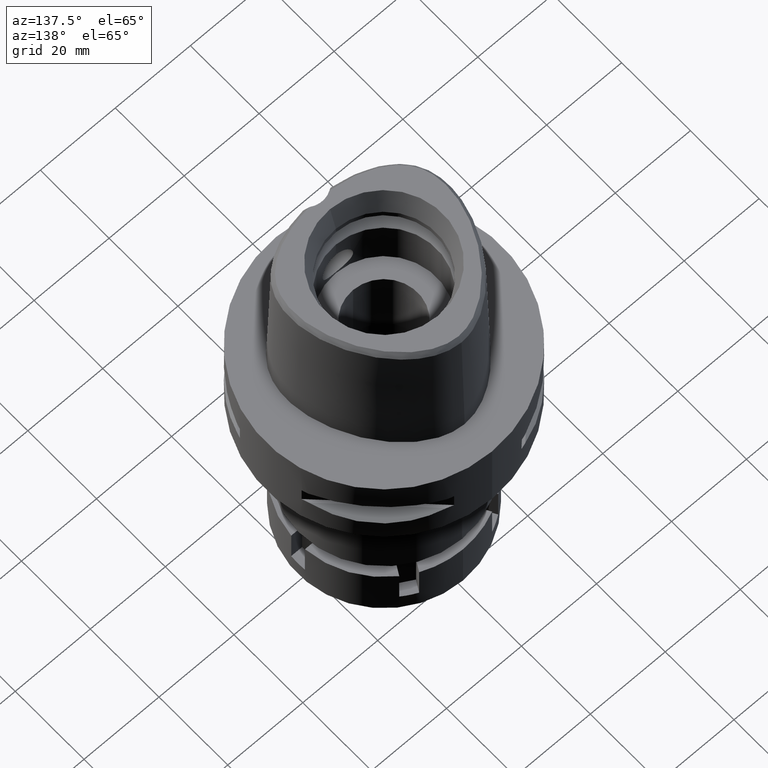
[diagram: clean part render]
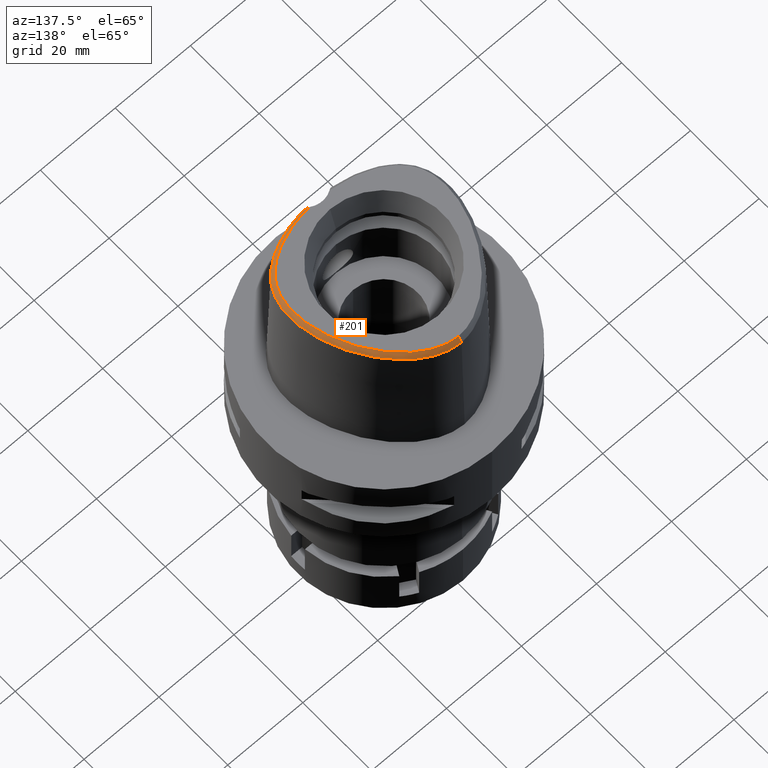
[diagram: same view with one face highlighted and labeled with its STEP entity id]
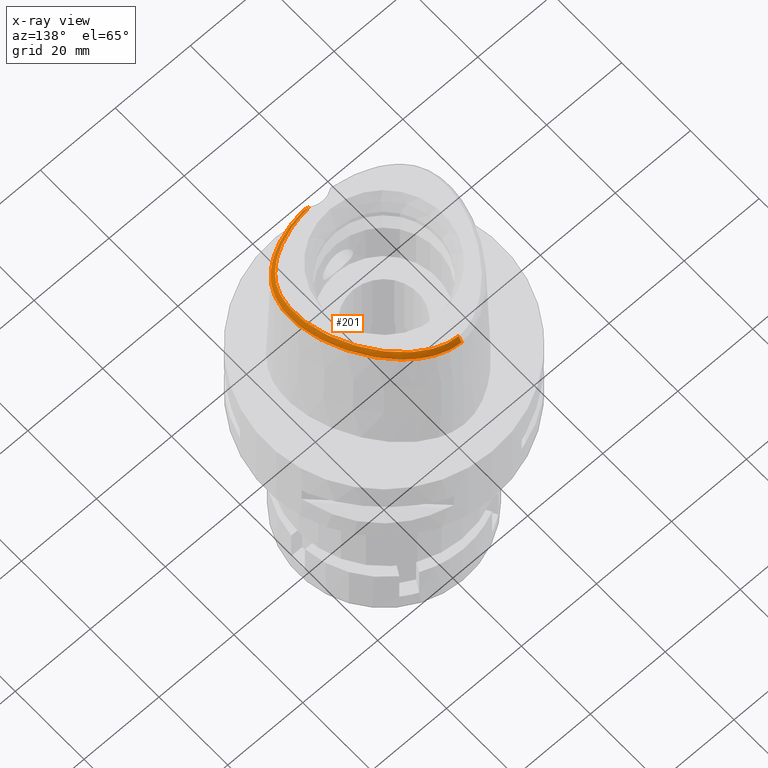
[diagram: x-ray of the same camera — body ghosted, the highlighted face saturated]
A machine part, auxiliary view. The second image highlights one B-rep face of the part: STEP entity #201.
The next image is the same camera in x-ray: the body ghosted, the highlighted face saturated — about 0% of this face is hidden behind the body in this view.
In plain terms, the highlighted face is a freeform B-spline surface patch.
Its self-contained STEP definition (entity closure, byte-faithful):
#1 = CARTESIAN_POINT ( 'NONE',  ( 14.53414054194000116, -15.86398340486000080, 36.96684091757000346 ) ) ;
#2 = CARTESIAN_POINT ( 'NONE',  ( 16.81132511292999965, 8.478678339543998632, 38.14312042908000677 ) ) ;
#25 = CARTESIAN_POINT ( 'NONE',  ( 19.22975104545000136, -10.58985094438999930, 37.55498045334000068 ) ) ;
#26 = CARTESIAN_POINT ( 'NONE',  ( 21.23217479828999998, -6.295849532791999437, 36.37870113081999790 ) ) ;
#55 = CARTESIAN_POINT ( 'NONE',  ( 18.16855469346000262, -13.32167118051000010, 36.37870073034000029 ) ) ;
#57 = CARTESIAN_POINT ( 'NONE',  ( 7.247723090906999843, 20.48100131961000159, 36.37870067739000035 ) ) ;
#62 = CARTESIAN_POINT ( 'NONE',  ( 2.066862868996000024, -18.73904617147000096, 38.14312038439999952 ) ) ;
#82 = CARTESIAN_POINT ( 'NONE',  ( 19.52745459987999865, -9.975070809521000115, 37.55498058475999557 ) ) ;
#83 = CARTESIAN_POINT ( 'NONE',  ( 12.89692419718000060, 15.29919441654999979, 36.96684115491000000 ) ) ;
#87 = CARTESIAN_POINT ( 'NONE',  ( 2.663801036869999805, -19.04755285614000115, 37.55498080539000227 ) ) ;
#108 = CARTESIAN_POINT ( 'NONE',  ( 2.002647189383000015, 21.41927919608000153, 38.14312046408999635 ) ) ;
#111 = CARTESIAN_POINT ( 'NONE',  ( 7.669267885208999935, -18.26423115759000382, 37.55498134495000073 ) ) ;
#135 = CARTESIAN_POINT ( 'NONE',  ( 4.349502290544999816, 21.11240394892999817, 37.55498052557000221 ) ) ;
#166 = CARTESIAN_POINT ( 'NONE',  ( 4.225481229390999793, 20.78699406918000037, 38.14312046525999733 ) ) ;
#201 = ADVANCED_FACE ( 'NONE', ( #3846 ), #1224, .F. ) ;
#217 = CARTESIAN_POINT ( 'NONE',  ( -0.5994318066995000249, 21.58623674582000262, 38.14312050749000349 ) ) ;
#246 = CARTESIAN_POINT ( 'NONE',  ( 14.21382211799703654, -15.34284287400226354, 37.99999999999819522 ) ) ;
#251 = CARTESIAN_POINT ( 'NONE',  ( 1.401147701963000092, 22.21784626514000038, 36.96684023193000002 ) ) ;
#269 = CARTESIAN_POINT ( 'NONE',  ( 19.78323211892966071, -8.541156231035872182, 37.99999999999726441 ) ) ;
#275 = CARTESIAN_POINT ( 'NONE',  ( 0.6897372437469000417, 22.28430074269999750, 36.96684044975999939 ) ) ;
#292 = CARTESIAN_POINT ( 'NONE',  ( 17.91165267838871245, -12.13575389398076965, 38.00000000000230216 ) ) ;
#293 = CARTESIAN_POINT ( 'NONE',  ( 21.32871516740507545, -4.105831245034452515, 36.52186680739941949 ) ) ;
#322 = CARTESIAN_POINT ( 'NONE',  ( 13.33890749495820849, -15.84912955620109187, 37.99999999999753442 ) ) ;
#335 = CARTESIAN_POINT ( 'NONE',  ( 19.56181150269000213, 1.500968667528000067, 38.14312008968000356 ) ) ;
#349 = CARTESIAN_POINT ( 'NONE',  ( 15.24661770199427657, 11.25762885478387254, 37.99999999999772626 ) ) ;
#358 = CARTESIAN_POINT ( 'NONE',  ( 21.34185696465999982, -3.233027288200000182, 36.37870063906999718 ) ) ;
#381 = CARTESIAN_POINT ( 'NONE',  ( 10.49683100008000025, -18.14945449713000158, 36.37870323033000375 ) ) ;
#382 = CARTESIAN_POINT ( 'NONE',  ( 19.37066120961999971, 4.467060877621999992, 36.96684021386000296 ) ) ;
#404 = CARTESIAN_POINT ( 'NONE',  ( 2.682287482605000051, -18.78036330228999873, 38.00000000000000000 ) ) ;
#418 = CARTESIAN_POINT ( 'NONE',  ( 20.44912681962999912, -9.562571519987999480, 36.37870112681000023 ) ) ;
#419 = CARTESIAN_POINT ( 'NONE',  ( 18.15585265601999865, 7.363055116946999767, 36.96684125519000474 ) ) ;
#433 = CARTESIAN_POINT ( 'NONE',  ( 3.013176611081999745, -19.00300066984999958, 37.57866301439000267 ) ) ;
#444 = CARTESIAN_POINT ( 'NONE',  ( 18.90260115292000265, -11.17030126791000022, 37.55498058751000201 ) ) ;
#445 = CARTESIAN_POINT ( 'NONE',  ( 20.03518568603999839, -8.618343707595998993, 37.55498052587000046 ) ) ;
#449 = CARTESIAN_POINT ( 'NONE',  ( 3.557059305159000040, -18.96940428717000060, 37.55498077425999526 ) ) ;
#468 = CARTESIAN_POINT ( 'NONE',  ( 15.15655908591999967, -15.04029885751999984, 37.55498079604999617 ) ) ;
#469 = CARTESIAN_POINT ( 'NONE',  ( 2.716266201037999650, 21.26309178397000110, 38.14312041160999911 ) ) ;
#473 = CARTESIAN_POINT ( 'NONE',  ( 2.270433486118999866, -18.72649904582999980, 38.14312037977000358 ) ) ;
#503 = CARTESIAN_POINT ( 'NONE',  ( 18.53525297414000050, -11.73631935933000037, 37.55498045348999625 ) ) ;
#505 = CARTESIAN_POINT ( 'NONE',  ( 3.561505512177999933, 21.38601115587999857, 37.55498065686000331 ) ) ;
#510 = CARTESIAN_POINT ( 'NONE',  ( 6.246371199437999344, -18.57542718642999802, 37.55498048815000089 ) ) ;
#532 = CARTESIAN_POINT ( 'NONE',  ( 12.63752979875000015, 15.06692760778999940, 37.55498077066999230 ) ) ;
#557 = CARTESIAN_POINT ( 'NONE',  ( 14.14950818264999910, 14.36765878763999993, 36.37870016552999886 ) ) ;
#583 = CARTESIAN_POINT ( 'NONE',  ( 8.736038160413999165, 18.65754381321000110, 37.55498038934999983 ) ) ;
#636 = CARTESIAN_POINT ( 'NONE',  ( 2.195869635844999834, 22.44604550562000256, 36.37870065946999887 ) ) ;
#658 = CARTESIAN_POINT ( 'NONE',  ( 18.67722910597819208, -11.03372143227935531, 37.99999999999970868 ) ) ;
#691 = CARTESIAN_POINT ( 'NONE',  ( 20.27923816685482450, -6.179850483268138461, 38.00000000000210321 ) ) ;
#716 = CARTESIAN_POINT ( 'NONE',  ( 12.44125753246211907, 14.89118158853626106, 37.99999999999642597 ) ) ;
#717 = CARTESIAN_POINT ( 'NONE',  ( 18.90964962507554148, -12.28759713487851357, 36.52186680739941949 ) ) ;
#738 = CARTESIAN_POINT ( 'NONE',  ( 6.760281394351524753, 19.65404668909712171, 37.99999999999683098 ) ) ;
#768 = CARTESIAN_POINT ( 'NONE',  ( 3.529311563348633385, -18.70747079909890331, 37.99999999999987921 ) ) ;
#779 = CARTESIAN_POINT ( 'NONE',  ( 20.29827156127000265, -3.280096505893999925, 38.14312046589000005 ) ) ;
#786 = B_SPLINE_CURVE_WITH_KNOTS ( 'NONE', 3,
 ( #4953, #2037, #4984, #3288, #4497, #3263, #3677, #2855, #4905, #2400, #738, #1626, #5290, #2831, #1542, #4054, #716, #5314, #4077, #349, #2800, #1135, #4520, #4471, #3726, #4930, #3310, #1180, #1519, #5396, #2378, #1211, #3647, #691, #2879, #1157, #269, #2908, #1956, #3234, #658, #2346, #292, #1980, #5344, #4028, #2420, #3207, #246, #322, #4137, #1577, #1933, #4546, #3624, #1097, #2014, #768, #3704, #5371 ),
 .UNSPECIFIED., .F., .F.,
 ( 4, 1, 1, 1, 1, 1, 1, 1, 1, 1, 1, 1, 1, 1, 1, 1, 1, 1, 1, 1, 1, 1, 1, 1, 1, 1, 1, 1, 1, 1, 1, 1, 1, 1, 1, 1, 1, 1, 1, 1, 1, 1, 1, 1, 1, 1, 1, 1, 1, 1, 1, 1, 1, 1, 1, 1, 1, 4 ),
 ( 0.0000000000000000000, 0.01775854187129999318, 0.03551708374169992855, 0.05327562561200005486, 0.07103416748239999023, 0.08879270935270000553, 0.1065512512231000519, 0.1243097930933999562, 0.1420683349638000026, 0.1598268768341000179, 0.1775854187044000332, 0.1953439605747999686, 0.2131025024450999839, 0.2308610443155000302, 0.2486195861857999345, 0.2663781280563000120, 0.2841366699266000273, 0.3018952117970000737, 0.3196537536672999780, 0.3374122955377000244, 0.3551708374080000397, 0.3729293792782999439, 0.3906879211486999903, 0.4084464630190000056, 0.4262050048894000520, 0.4439635467596999563, 0.4617220886301000027, 0.4794806305004000180, 0.4972391723707999533, 0.5149977142410999686, 0.5327562561113999839, 0.5505147979818000303, 0.5682733398521000456, 0.5860318817224999810, 0.6037904235927999963, 0.6215489654632000427, 0.6393075073334999470, 0.6570660492038999934, 0.6748245910742000087, 0.6925831329445000240, 0.7103416748149000703, 0.7281002166851999746, 0.7458587585556000210, 0.7636173004259000363, 0.7813758422962999717, 0.7991343841665999870, 0.8168929260370000334, 0.8346514679073000487, 0.8524100097776999840, 0.8701685516479999993, 0.8879270935183000146, 0.9056856353886799660, 0.9234441772589799813, 0.9412027191293600437, 0.9589612609997000270, 0.9767198028700500023, 0.9944783447403919840, 1.000000000000000000 ),
 .UNSPECIFIED. ) ;
#801 = CARTESIAN_POINT ( 'NONE',  ( 16.76705465379000159, -14.22154602754999964, 36.96684048117000287 ) ) ;
#802 = CARTESIAN_POINT ( 'NONE',  ( 20.42032778385999947, -0.9682648818157000292, 37.55498067365000736 ) ) ;
#827 = CARTESIAN_POINT ( 'NONE',  ( 19.84709587994000302, -10.91245682656999882, 36.37870038303999820 ) ) ;
#829 = CARTESIAN_POINT ( 'NONE',  ( 19.69782293031000009, 4.586211662315999860, 36.37870006239000276 ) ) ;
#833 = CARTESIAN_POINT ( 'NONE',  ( 2.109679075390999969, -19.43382457305000344, 36.96684116970000389 ) ) ;
#862 = CARTESIAN_POINT ( 'NONE',  ( 17.36918122826999777, -13.65829899168999972, 36.96684054597999847 ) ) ;
#863 = CARTESIAN_POINT ( 'NONE',  ( 20.23629840058000440, 1.674219097718000260, 36.96684329719000317 ) ) ;
#868 = CARTESIAN_POINT ( 'NONE',  ( 2.691157682845999766, -19.39454029196000207, 36.96684123551000312 ) ) ;
#877 = VERTEX_POINT ( 'NONE', #4328 ) ;
#886 = CARTESIAN_POINT ( 'NONE',  ( 15.55375942659000010, -15.61239560307999952, 36.37870163160999937 ) ) ;
#887 = CARTESIAN_POINT ( 'NONE',  ( 4.597544412854000839, 21.76322370843999821, 36.37870064616999599 ) ) ;
#910 = CARTESIAN_POINT ( 'NONE',  ( 18.24923933955999900, -11.53760145492000078, 38.14312048844999481 ) ) ;
#911 = CARTESIAN_POINT ( 'NONE',  ( 6.175651576553000233, 20.67513462779000122, 36.96684100518999827 ) ) ;
#940 = CARTESIAN_POINT ( 'NONE',  ( 5.309492800363000420, 21.09219560234999591, 36.96684091790000082 ) ) ;
#966 = CARTESIAN_POINT ( 'NONE',  ( 8.187220205125999684, 19.89351731613000140, 36.37870071398000249 ) ) ;
#969 = CARTESIAN_POINT ( 'NONE',  ( 9.210237023466998352, -18.56807876874999863, 36.37870482197000399 ) ) ;
#981 = B_SPLINE_CURVE_WITH_KNOTS ( 'NONE', 3,
 ( #2668, #2927, #5129, #433, #4186, #404 ),
 .UNSPECIFIED., .F., .F.,
 ( 4, 1, 1, 4 ),
 ( 0.0000000000000000000, 0.3333333333333000081, 0.6666666666667000474, 1.000000000000000000 ),
 .UNSPECIFIED. ) ;
#992 = CARTESIAN_POINT ( 'NONE',  ( 10.43275403164999915, 16.80350240081000024, 38.14312011183000095 ) ) ;
#1049 = CARTESIAN_POINT ( 'NONE',  ( 0.7116062460697000214, 22.63188833479999928, 36.37870043257999697 ) ) ;
#1081 = EDGE_CURVE ( 'NONE', #2563, #1262, #786, .T. ) ;
#1097 = CARTESIAN_POINT ( 'NONE',  ( 6.196495988003621669, -18.31673538864915329, 37.99999999999618439 ) ) ;
#1103 = CARTESIAN_POINT ( 'NONE',  ( -0.4340965625268999872, 22.64064373783999784, 36.37870066218000176 ) ) ;
#1135 = CARTESIAN_POINT ( 'NONE',  ( 16.88599964843029255, 8.518708218770241203, 37.99999999999727862 ) ) ;
#1136 = CARTESIAN_POINT ( 'NONE',  ( 0.7901461619530777414, 22.56201467849585640, 36.52186680739941949 ) ) ;
#1139 = CARTESIAN_POINT ( 'NONE',  ( 0.02306072704373000187, 21.95694936752000004, 37.55498062224000222 ) ) ;
#1157 = CARTESIAN_POINT ( 'NONE',  ( 19.98468477322735737, -7.807876343103749228, 37.99999999999729994 ) ) ;
#1180 = CARTESIAN_POINT ( 'NONE',  ( 19.94150023628099433, 0.2261566111945258750, 37.99999999999851497 ) ) ;
#1181 = CARTESIAN_POINT ( 'NONE',  ( 21.07429999882542404, -0.4408303635841513968, 36.52186680739941949 ) ) ;
#1189 = CARTESIAN_POINT ( 'NONE',  ( 20.06787939814000055, -7.007105580488000030, 38.14312047899000646 ) ) ;
#1204 = EDGE_CURVE ( 'NONE', #3575, #1262, #981, .T. ) ;
#1210 = ORIENTED_EDGE ( 'NONE', *, *, #1081, .T. ) ;
#1211 = CARTESIAN_POINT ( 'NONE',  ( 20.40062138794801783, -4.309334958867511389, 38.00000000000190425 ) ) ;
#1223 = CARTESIAN_POINT ( 'NONE',  ( 14.16944937044000064, -15.27065084416999952, 38.14312041931999886 ) ) ;
#1224 = B_SPLINE_SURFACE_WITH_KNOTS ( 'NONE', 3, 3, ( 
 ( #62, #1696, #833, #5102 ),
 ( #473, #4312, #3049, #2218 ),
 ( #2525, #87, #868, #4204 ),
 ( #2604, #449, #2581, #4258 ),
 ( #3817, #4726, #1752, #3024 ),
 ( #4286, #510, #2110, #2135 ),
 ( #3874, #111, #1801, #5160 ),
 ( #4754, #1388, #3084, #969 ),
 ( #2664, #3374, #3431, #381 ),
 ( #5020, #5097, #5433, #1330 ),
 ( #2996, #2070, #3790, #2552 ),
 ( #1271, #1716, #2962, #4638 ),
 ( #1223, #2189, #1, #3812 ),
 ( #1305, #468, #3761, #886 ),
 ( #2576, #4996, #4605, #1690 ),
 ( #2599, #2516, #801, #5045 ),
 ( #1664, #1248, #862, #4228 ),
 ( #3838, #3019, #4694, #55 ),
 ( #4253, #4667, #1747, #2129 ),
 ( #910, #503, #2492, #4278 ),
 ( #3351, #444, #3870, #2155 ),
 ( #2937, #25, #3399, #827 ),
 ( #5072, #82, #1771, #2917 ),
 ( #4583, #4170, #4198, #418 ),
 ( #2105, #445, #1610, #4172 ),
 ( #5381, #3813, #2470, #3352 ),
 ( #1189, #4668, #1691, #1225 ),
 ( #2918, #4606, #4559, #26 ),
 ( #3400, #2964, #3296, #1717 ),
 ( #5073, #5404, #4147, #1272 ),
 ( #779, #1306, #3734, #358 ),
 ( #1635, #3791, #2997, #2891 ),
 ( #2518, #802, #4965, #2438 ),
 ( #2130, #1665, #4119, #4640 ),
 ( #335, #2022, #863, #2047 ),
 ( #5022, #2553, #3327, #4997 ),
 ( #3713, #4584, #382, #829 ),
 ( #2071, #2493, #3764, #5434 ),
 ( #1249, #4200, #419, #3375 ),
 ( #2, #4229, #5046, #2938 ),
 ( #2106, #1332, #3955, #3871 ),
 ( #2190, #2156, #1858, #3517 ),
 ( #4774, #3432, #5183, #2688 ),
 ( #1409, #2239, #3921, #557 ),
 ( #1832, #532, #83, #1798 ),
 ( #1354, #5098, #3104, #2600 ),
 ( #992, #4357, #3020, #1384 ),
 ( #4695, #4280, #3080, #4750 ),
 ( #4309, #583, #2275, #5208 ),
 ( #4718, #3481, #3897, #966 ),
 ( #2636, #2660, #3538, #57 ),
 ( #5151, #3839, #911, #3127 ),
 ( #5122, #3045, #940, #4332 ),
 ( #166, #135, #1435, #887 ),
 ( #2578, #505, #4254, #1772 ),
 ( #469, #1748, #3457, #2214 ),
 ( #108, #2405, #1523, #636 ),
 ( #4081, #3565, #251, #4883 ),
 ( #5272, #1884, #275, #1049 ),
 ( #3651, #1139, #5234, #5295 ),
 ( #1466, #2753, #3212, #1103 ),
 ( #217, #2808, #1911, #2353 ) ),
 .UNSPECIFIED., .F., .F., .F.,
 ( 4, 1, 1, 1, 1, 1, 1, 1, 1, 1, 1, 1, 1, 1, 1, 1, 1, 1, 1, 1, 1, 1, 1, 1, 1, 1, 1, 1, 1, 1, 1, 1, 1, 1, 1, 1, 1, 1, 1, 1, 1, 1, 1, 1, 1, 1, 1, 1, 1, 1, 1, 1, 1, 1, 1, 1, 1, 1, 1, 4 ),
 ( 4, 4 ),
 ( -0.006872922983041999424, 0.0000000000000000000, 0.005521655259608000341, 0.02328019712995000115, 0.04103873900030000077, 0.05879728087063999797, 0.07655582274102000484, 0.09431436461132000626, 0.1120729064816999992, 0.1298314483520000007, 0.1475899902222999882, 0.1653485320926999791, 0.1831070739629999944, 0.2008656158334000130, 0.2186241577037000006, 0.2363826995740999914, 0.2541412414444000345, 0.2718997833148000254, 0.2896583251850999852, 0.3074168670554999760, 0.3251754089257999913, 0.3429339507961000066, 0.3606924926664999975, 0.3784510345368000128, 0.3962095764072000037, 0.4139681182775000190, 0.4317266601479000099, 0.4494852020181999697, 0.4672437438886000161, 0.4850022857588999758, 0.5027608276292000467, 0.5205193694995999820, 0.5382779113698999973, 0.5560364532403000437, 0.5737949951105999480, 0.5915535369809999944, 0.6093120788513000097, 0.6270706207217000561, 0.6448291625919999603, 0.6625877044622999756, 0.6803462463327000220, 0.6981047882029999263, 0.7158633300733999727, 0.7336218719436999880, 0.7513804138142000655, 0.7691389556844999698, 0.7868974975549000161, 0.8046560394252000314, 0.8224145812955999668, 0.8401731231658999821, 0.8579316650361999974, 0.8756902069066000438, 0.8934487487768999481, 0.9112072906472999945, 0.9289658325176000098, 0.9467243743879999451, 0.9644829162583000715, 0.9822414581287000068, 1.000000000000000000, 1.016088127153999876 ),
 ( -0.07386983292599000328, 1.073894376113999849 ),
 .UNSPECIFIED. ) ;
#1225 = CARTESIAN_POINT ( 'NONE',  ( 21.09595574128999829, -7.192927168011999939, 36.37870049073999468 ) ) ;
#1248 = CARTESIAN_POINT ( 'NONE',  ( 17.12403948807999754, -13.41094001383999945, 37.55498050838999546 ) ) ;
#1249 = CARTESIAN_POINT ( 'NONE',  ( 17.52725423898000301, 7.063427290713000239, 38.14312037255000121 ) ) ;
#1262 = VERTEX_POINT ( 'NONE', #5449 ) ;
#1271 = CARTESIAN_POINT ( 'NONE',  ( 13.29854752836000031, -15.77462181940000185, 38.14312046866000117 ) ) ;
#1272 = CARTESIAN_POINT ( 'NONE',  ( 21.36051100466999841, -4.318184398075000097, 36.37870083787999675 ) ) ;
#1305 = CARTESIAN_POINT ( 'NONE',  ( 14.95795891557999902, -14.75425048474000000, 38.14312037826999813 ) ) ;
#1306 = CARTESIAN_POINT ( 'NONE',  ( 20.64613336240000052, -3.264406766661999804, 37.55498052362000294 ) ) ;
#1330 = CARTESIAN_POINT ( 'NONE',  ( 11.68879713049999935, -17.69331152931000162, 36.37870041250999975 ) ) ;
#1332 = CARTESIAN_POINT ( 'NONE',  ( 16.32370459612999980, 10.04471794312999933, 37.55498053819000148 ) ) ;
#1354 = CARTESIAN_POINT ( 'NONE',  ( 11.40559229511999995, 15.86763123285999910, 38.14312012912999705 ) ) ;
#1384 = CARTESIAN_POINT ( 'NONE',  ( 11.13843799368000020, 17.57367429994000219, 36.37870464998999864 ) ) ;
#1388 = CARTESIAN_POINT ( 'NONE',  ( 9.011940601596000633, -17.90052240268000006, 37.55498167176000379 ) ) ;
#1409 = CARTESIAN_POINT ( 'NONE',  ( 13.33852104619000123, 13.70934353575999864, 38.14312050770000440 ) ) ;
#1435 = CARTESIAN_POINT ( 'NONE',  ( 4.473523351700000816, 21.43781382868999685, 36.96684058587000266 ) ) ;
#1466 = CARTESIAN_POINT ( 'NONE',  ( -0.3946592109888000244, 21.59706614405000025, 38.14312046385000343 ) ) ;
#1519 = CARTESIAN_POINT ( 'NONE',  ( 20.15982952132431905, -1.007721426051791491, 38.00000000000221689 ) ) ;
#1523 = CARTESIAN_POINT ( 'NONE',  ( 2.131462153691000339, 22.10379006910000044, 36.96684059433999892 ) ) ;
#1542 = CARTESIAN_POINT ( 'NONE',  ( 10.48999540691041510, 16.86597469870065069, 37.99999999999777600 ) ) ;
#1577 = CARTESIAN_POINT ( 'NONE',  ( 11.32341394162737380, -16.80569392800370920, 37.99999999999388933 ) ) ;
#1578 = CARTESIAN_POINT ( 'NONE',  ( 2.376843874103966581, 22.39422497744399720, 36.52186680739941949 ) ) ;
#1610 = CARTESIAN_POINT ( 'NONE',  ( 20.36816876717999847, -8.720355058599999154, 36.96684058657999827 ) ) ;
#1626 = CARTESIAN_POINT ( 'NONE',  ( 7.655962789343796260, 19.09402979099453646, 38.00000000000377298 ) ) ;
#1635 = CARTESIAN_POINT ( 'NONE',  ( 20.22045711620999953, -2.183654373984999619, 38.14312050157000300 ) ) ;
#1664 = CARTESIAN_POINT ( 'NONE',  ( 16.87889774789000086, -13.16358103600000007, 38.14312047079000223 ) ) ;
#1665 = CARTESIAN_POINT ( 'NONE',  ( 20.19964279111999872, 0.2788451704323999802, 37.55498148892000643 ) ) ;
#1690 = CARTESIAN_POINT ( 'NONE',  ( 16.31223298043000014, -15.05229700301999785, 36.37870081037999626 ) ) ;
#1691 = CARTESIAN_POINT ( 'NONE',  ( 20.75326362691000170, -7.130986638836999347, 36.96684048682000423 ) ) ;
#1696 = CARTESIAN_POINT ( 'NONE',  ( 2.088270972193000397, -19.08643537226000220, 37.55498077704999815 ) ) ;
#1716 = CARTESIAN_POINT ( 'NONE',  ( 13.46440297242000028, -16.08080427727999862, 37.55498051501999868 ) ) ;
#1717 = CARTESIAN_POINT ( 'NONE',  ( 21.32206815853000137, -5.338365932389999458, 36.37870166044999820 ) ) ;
#1747 = CARTESIAN_POINT ( 'NONE',  ( 18.39160130233999979, -12.51513463366000067, 36.96684098768999860 ) ) ;
#1748 = CARTESIAN_POINT ( 'NONE',  ( 2.801193174805000297, 21.60083397745000156, 37.55498069241000536 ) ) ;
#1752 = CARTESIAN_POINT ( 'NONE',  ( 4.802293543043999691, -19.17143546928999953, 36.96684061724999992 ) ) ;
#1771 = CARTESIAN_POINT ( 'NONE',  ( 19.84553733167000189, -10.11689708951999833, 36.96684072329000514 ) ) ;
#1772 = CARTESIAN_POINT ( 'NONE',  ( 3.771158136176000042, 22.05020744727999826, 36.37870112448000270 ) ) ;
#1798 = CARTESIAN_POINT ( 'NONE',  ( 13.15631859561000105, 15.53146122531000195, 36.37870153913999616 ) ) ;
#1801 = CARTESIAN_POINT ( 'NONE',  ( 7.751773653458000624, -18.60250291400999956, 36.96684248814000284 ) ) ;
#1832 = CARTESIAN_POINT ( 'NONE',  ( 12.37813540031999970, 14.83466079901999990, 38.14312038644000324 ) ) ;
#1858 = CARTESIAN_POINT ( 'NONE',  ( 15.75599792698000101, 11.59618721631999883, 36.96684123699000679 ) ) ;
#1884 = CARTESIAN_POINT ( 'NONE',  ( 0.6678682414240999510, 21.93671315059000193, 37.55498046694000180 ) ) ;
#1911 = CARTESIAN_POINT ( 'NONE',  ( -0.6386410310993000383, 22.28118752305000072, 36.96684028104999697 ) ) ;
#1933 = CARTESIAN_POINT ( 'NONE',  ( 10.17751632998551159, -17.24426134458732562, 37.99999999999792522 ) ) ;
#1956 = CARTESIAN_POINT ( 'NONE',  ( 19.28677546797380415, -9.867757137506220744, 37.99999999999656097 ) ) ;
#1980 = CARTESIAN_POINT ( 'NONE',  ( 17.45306278053644178, -12.68156296993868182, 37.99999999999922551 ) ) ;
#1981 = CARTESIAN_POINT ( 'NONE',  ( 4.467522181836776518, -19.48130276147466233, 36.52186680739941949 ) ) ;
#2014 = CARTESIAN_POINT ( 'NONE',  ( 4.715576077242019437, -18.56597918135031478, 37.99999999999606359 ) ) ;
#2022 = CARTESIAN_POINT ( 'NONE',  ( 19.89905495164000371, 1.587593882622999830, 37.55498169343000114 ) ) ;
#2037 = CARTESIAN_POINT ( 'NONE',  ( 0.2185816947241100150, 21.68728795389527164, 38.00000000000044764 ) ) ;
#2047 = CARTESIAN_POINT ( 'NONE',  ( 20.57354184952999887, 1.760844312813000023, 36.37870490094999809 ) ) ;
#2070 = CARTESIAN_POINT ( 'NONE',  ( 12.48915139190999923, -16.57675851339000062, 37.55498048343000050 ) ) ;
#2071 = CARTESIAN_POINT ( 'NONE',  ( 18.16434242190000248, 5.639769264503000201, 38.14312043372999739 ) ) ;
#2105 = CARTESIAN_POINT ( 'NONE',  ( 19.70220260489000097, -8.516332356591998831, 38.14312046516999999 ) ) ;
#2106 = CARTESIAN_POINT ( 'NONE',  ( 16.02495671642000019, 9.865895511935999451, 38.14312046120000588 ) ) ;
#2110 = CARTESIAN_POINT ( 'NONE',  ( 6.312286525688999284, -18.91731554657000203, 36.96684049898999547 ) ) ;
#2129 = CARTESIAN_POINT ( 'NONE',  ( 18.66481853375999833, -12.73110223972999933, 36.37870127672999843 ) ) ;
#2130 = CARTESIAN_POINT ( 'NONE',  ( 19.85848031315999762, 0.2092117098006999742, 38.14312015544999923 ) ) ;
#2135 = CARTESIAN_POINT ( 'NONE',  ( 6.378201851941000200, -19.25920390671000249, 36.37870050982999715 ) ) ;
#2155 = CARTESIAN_POINT ( 'NONE',  ( 19.49830677802000167, -11.53131044123999871, 36.37870087182000134 ) ) ;
#2156 = CARTESIAN_POINT ( 'NONE',  ( 15.46602635946999982, 11.40345829992999960, 37.55498080603000233 ) ) ;
#2189 = CARTESIAN_POINT ( 'NONE',  ( 14.35179495619000001, -15.56731712450999972, 37.55498066844000249 ) ) ;
#2190 = CARTESIAN_POINT ( 'NONE',  ( 15.17605479194999951, 11.21072938354999948, 38.14312037506999786 ) ) ;
#2214 = CARTESIAN_POINT ( 'NONE',  ( 2.971047122339000257, 22.27631836439999802, 36.37870125400999655 ) ) ;
#2218 = CARTESIAN_POINT ( 'NONE',  ( 2.341022701826000141, -19.76827441528000051, 36.37870161469000152 ) ) ;
#2239 = CARTESIAN_POINT ( 'NONE',  ( 13.60885009167999904, 13.92878195304999878, 37.55498039363999396 ) ) ;
#2275 = CARTESIAN_POINT ( 'NONE',  ( 8.943781306534999587, 18.93699103048000154, 36.96684026963999514 ) ) ;
#2320 = EDGE_CURVE ( 'NONE', #877, #3575, #2729, .T. ) ;
#2346 = CARTESIAN_POINT ( 'NONE',  ( 18.31883910943042792, -11.58595831188045011, 37.99999999999877076 ) ) ;
#2353 = CARTESIAN_POINT ( 'NONE',  ( -0.6582456432992001005, 22.62866291166999844, 36.37870016784000171 ) ) ;
#2378 = CARTESIAN_POINT ( 'NONE',  ( 20.38292172608090169, -3.276278498261349537, 37.99999999999417355 ) ) ;
#2400 = CARTESIAN_POINT ( 'NONE',  ( 5.894487344449967914, 20.13186406532188144, 37.99999999999620570 ) ) ;
#2401 = CARTESIAN_POINT ( 'NONE',  ( 4.757642236485272846, 21.67478320247679591, 36.52186680739941949 ) ) ;
#2405 = CARTESIAN_POINT ( 'NONE',  ( 2.067054671536999955, 21.76153463258999921, 37.55498052922000340 ) ) ;
#2420 = CARTESIAN_POINT ( 'NONE',  ( 15.72078707639993844, -14.29615620309490964, 37.99999999999575806 ) ) ;
#2438 = CARTESIAN_POINT ( 'NONE',  ( 21.10887936968000034, -0.8639729535696000218, 36.37870118564000421 ) ) ;
#2462 = CARTESIAN_POINT ( 'NONE',  ( 20.67704204634065590, -8.734985285292969692, 36.52186680739941949 ) ) ;
#2470 = CARTESIAN_POINT ( 'NONE',  ( 20.57926436949999882, -7.951833517074000213, 36.96684052124999909 ) ) ;
#2477 = EDGE_LOOP ( 'NONE', ( #3063, #3825, #1210, #3782 ) ) ;
#2492 = CARTESIAN_POINT ( 'NONE',  ( 18.82126660872000201, -11.93503726375000085, 36.96684041852999769 ) ) ;
#2493 = CARTESIAN_POINT ( 'NONE',  ( 18.48541011820000080, 5.774473270164000027, 37.55498062363000145 ) ) ;
#2516 = CARTESIAN_POINT ( 'NONE',  ( 16.53694790540000170, -13.96015162572999913, 37.55498048047000026 ) ) ;
#2518 = CARTESIAN_POINT ( 'NONE',  ( 20.07605199094999904, -1.020410845938999778, 38.14312041765000316 ) ) ;
#2525 = CARTESIAN_POINT ( 'NONE',  ( 2.636444390894999934, -18.70056542032999758, 38.14312037527999877 ) ) ;
#2552 = CARTESIAN_POINT ( 'NONE',  ( 12.78764170266000022, -17.20596982026999910, 36.37870049266999217 ) ) ;
#2553 = CARTESIAN_POINT ( 'NONE',  ( 19.51436770073999938, 2.948252861976000450, 37.55498109778000071 ) ) ;
#2563 = VERTEX_POINT ( 'NONE', #4432 ) ;
#2576 = CARTESIAN_POINT ( 'NONE',  ( 15.66857709262000142, -14.22940775048000006, 38.14312045076999880 ) ) ;
#2578 = CARTESIAN_POINT ( 'NONE',  ( 3.456679200178999878, 21.05391301018000050, 38.14312042304000272 ) ) ;
#2581 = CARTESIAN_POINT ( 'NONE',  ( 3.593730858051999988, -19.31557688124000194, 36.96684116323999802 ) ) ;
#2599 = CARTESIAN_POINT ( 'NONE',  ( 16.30684115701999914, -13.69875722391000039, 38.14312047977000475 ) ) ;
#2600 = CARTESIAN_POINT ( 'NONE',  ( 12.14872700169000019, 16.60171200343000208, 36.37870445405000197 ) ) ;
#2604 = CARTESIAN_POINT ( 'NONE',  ( 3.520387752265999648, -18.62323169308999837, 38.14312038528999693 ) ) ;
#2636 = CARTESIAN_POINT ( 'NONE',  ( 6.717252398973000638, 19.58104713402000030, 38.14312046250999799 ) ) ;
#2660 = CARTESIAN_POINT ( 'NONE',  ( 6.894075962950999781, 19.88103186254999599, 37.55498053414000736 ) ) ;
#2664 = CARTESIAN_POINT ( 'NONE',  ( 10.14932877532999989, -17.16435527119999804, 38.14312023714999356 ) ) ;
#2668 = CARTESIAN_POINT ( 'NONE',  ( 3.637738219117000238, -19.56971420299000286, 36.52185956443999970 ) ) ;
#2688 = CARTESIAN_POINT ( 'NONE',  ( 15.11709158935000019, 13.11647568170999989, 36.37870138712000312 ) ) ;
#2702 = CARTESIAN_POINT ( 'NONE',  ( 3.637738219117000238, -19.56971420299000286, 36.52185956443999970 ) ) ;
#2729 = B_SPLINE_CURVE_WITH_KNOTS ( 'NONE', 3,
 ( #4078, #1136, #1578, #2401, #3264, #2909, #5315, #4548, #4954, #1181, #293, #4931, #2462, #5347, #3679, #717, #2832, #4907, #5397, #4108, #2856, #1981, #4473 ),
 .UNSPECIFIED., .F., .F.,
 ( 4, 1, 1, 1, 1, 1, 1, 1, 1, 1, 1, 1, 1, 1, 1, 1, 1, 1, 1, 1, 4 ),
 ( 0.0000000000000000000, 0.04382683003322353915, 0.08765366006602620663, 0.1314804900989341996, 0.1753073201318422203, 0.2629609801974476802, 0.3506146402631584724, 0.4382683003288690982, 0.5259219603945799459, 0.5697487904274878279, 0.6135756204601853225, 0.6574024504930933155, 0.6793158655094947429, 0.7012292805260014195, 0.7231426955424027359, 0.7450561105588040522, 0.7888829405917120452, 0.8327097706245147890, 0.8765366006573176438, 0.9641902607230703470, 1.000000000000000000 ),
 .UNSPECIFIED. ) ;
#2732 = DIRECTION ( 'NONE',  ( -1.159489993694014793E-11, -0.5092834681090075977, 0.8605988316927122295 ) ) ;
#2753 = CARTESIAN_POINT ( 'NONE',  ( -0.4078049948347999831, 21.94492534197999944, 37.55498052995999814 ) ) ;
#2800 = CARTESIAN_POINT ( 'NONE',  ( 16.09765529146371321, 9.909410920133330691, 37.99999999999097611 ) ) ;
#2808 = CARTESIAN_POINT ( 'NONE',  ( -0.6190364188993999761, 21.93371213442999945, 37.55498039427000379 ) ) ;
#2831 = CARTESIAN_POINT ( 'NONE',  ( 9.524842839488043111, 17.70516372194486365, 38.00000000000208900 ) ) ;
#2832 = CARTESIAN_POINT ( 'NONE',  ( 17.90324024157390426, -13.53935104436017589, 36.52186680739941949 ) ) ;
#2855 = CARTESIAN_POINT ( 'NONE',  ( 4.255661039972707727, 20.86618068829861627, 37.99999999999198508 ) ) ;
#2856 = CARTESIAN_POINT ( 'NONE',  ( 7.300578979385020872, -19.07170738130598409, 36.52186680739941949 ) ) ;
#2879 = CARTESIAN_POINT ( 'NONE',  ( 20.15127154947196075, -7.022178451341020811, 37.99999999999980815 ) ) ;
#2891 = CARTESIAN_POINT ( 'NONE',  ( 21.26005209587999900, -2.081247925647999875, 36.37870023490999927 ) ) ;
#2908 = CARTESIAN_POINT ( 'NONE',  ( 19.54993126781585033, -9.226212439886355199, 37.99999999999923261 ) ) ;
#2909 = CARTESIAN_POINT ( 'NONE',  ( 10.15538781007090918, 18.47129526703172075, 36.52186680739941949 ) ) ;
#2917 = CARTESIAN_POINT ( 'NONE',  ( 20.16362006346999891, -10.25872336952999930, 36.37870086182999785 ) ) ;
#2918 = CARTESIAN_POINT ( 'NONE',  ( 20.19511753007000010, -6.169610648224999494, 38.14312042249000712 ) ) ;
#2927 = CARTESIAN_POINT ( 'NONE',  ( 3.538167899087999668, -19.46412219692999912, 36.71711549612999903 ) ) ;
#2937 = CARTESIAN_POINT ( 'NONE',  ( 18.92107862820000008, -10.42854800329999776, 38.14312048848999837 ) ) ;
#2938 = CARTESIAN_POINT ( 'NONE',  ( 17.73192881672999732, 8.972175283741998797, 36.37870105609999882 ) ) ;
#2962 = CARTESIAN_POINT ( 'NONE',  ( 13.63025841646999936, -16.38698673516000071, 36.96684056137999619 ) ) ;
#2964 = CARTESIAN_POINT ( 'NONE',  ( 20.62706179754999880, -5.293398036301000253, 37.55498080396999683 ) ) ;
#2996 = CARTESIAN_POINT ( 'NONE',  ( 12.33990623653999918, -16.26215285996000048, 38.14312047882000201 ) ) ;
#2997 = CARTESIAN_POINT ( 'NONE',  ( 20.91352043598999799, -2.115383408426999789, 36.96684032379999252 ) ) ;
#3019 = CARTESIAN_POINT ( 'NONE',  ( 17.64945330786000000, -12.85726193556999952, 37.55498054867000235 ) ) ;
#3020 = CARTESIAN_POINT ( 'NONE',  ( 10.90321000634000015, 17.31695033356999858, 36.96684313726999704 ) ) ;
#3024 = CARTESIAN_POINT ( 'NONE',  ( 4.851658630763999724, -19.51609963226000133, 36.37870069542000095 ) ) ;
#3045 = CARTESIAN_POINT ( 'NONE',  ( 5.167038286104000733, 20.77443109349000139, 37.55498066858000783 ) ) ;
#3049 = CARTESIAN_POINT ( 'NONE',  ( 2.317492963257000049, -19.42101595879999820, 36.96684120305000221 ) ) ;
#3063 = ORIENTED_EDGE ( 'NONE', *, *, #2320, .F. ) ;
#3080 = CARTESIAN_POINT ( 'NONE',  ( 9.914684206057998495, 18.17650418012999936, 36.96684157306999907 ) ) ;
#3084 = CARTESIAN_POINT ( 'NONE',  ( 9.111088812531999537, -18.23430058572000334, 36.96684324686000167 ) ) ;
#3104 = CARTESIAN_POINT ( 'NONE',  ( 11.90101543283000041, 16.35701841323999872, 36.96684301240999559 ) ) ;
#3127 = CARTESIAN_POINT ( 'NONE',  ( 6.335708110185000130, 20.98439872727999855, 36.37870130419000247 ) ) ;
#3207 = CARTESIAN_POINT ( 'NONE',  ( 15.00628712263274522, -14.82385870795122607, 37.99999999999043609 ) ) ;
#3212 = CARTESIAN_POINT ( 'NONE',  ( -0.4209507786807999974, 22.29278453990999864, 36.96684059606999995 ) ) ;
#3234 = CARTESIAN_POINT ( 'NONE',  ( 18.99619228226562839, -10.46780014453366014, 37.99999999999253220 ) ) ;
#3263 = CARTESIAN_POINT ( 'NONE',  ( 2.736932690727049700, 21.34527940057159157, 37.99999999999714362 ) ) ;
#3264 = CARTESIAN_POINT ( 'NONE',  ( 7.108589361577683619, 20.52412316394557124, 36.52186680739941949 ) ) ;
#3288 = CARTESIAN_POINT ( 'NONE',  ( 1.325020189552459815, 21.61081414408899803, 38.00000000000055422 ) ) ;
#3296 = CARTESIAN_POINT ( 'NONE',  ( 20.97456497804000009, -5.315881984346000344, 36.96684123221000107 ) ) ;
#3310 = CARTESIAN_POINT ( 'NONE',  ( 19.64387775268415126, 1.522048414458393006, 37.99999999999959499 ) ) ;
#3327 = CARTESIAN_POINT ( 'NONE',  ( 19.84693466259999894, 3.051371046110000318, 36.96684191433000422 ) ) ;
#3351 = CARTESIAN_POINT ( 'NONE',  ( 18.60474834037000136, -10.98979668123999964, 38.14312044535000013 ) ) ;
#3352 = CARTESIAN_POINT ( 'NONE',  ( 20.91773682894000430, -8.033783081159999284, 36.37870054476000092 ) ) ;
#3374 = CARTESIAN_POINT ( 'NONE',  ( 10.26516285024000119, -17.49272167983999893, 37.55498123487999607 ) ) ;
#3375 = CARTESIAN_POINT ( 'NONE',  ( 18.47015186454000002, 7.512869030064000420, 36.37870169650999941 ) ) ;
#3399 = CARTESIAN_POINT ( 'NONE',  ( 19.53842346269000174, -10.75115388547999906, 36.96684041818999589 ) ) ;
#3400 = CARTESIAN_POINT ( 'NONE',  ( 20.27955861707000196, -5.270914088257000252, 38.14312037572999969 ) ) ;
#3431 = CARTESIAN_POINT ( 'NONE',  ( 10.38099692515999806, -17.82108808847999981, 36.96684223260999858 ) ) ;
#3432 = CARTESIAN_POINT ( 'NONE',  ( 14.55608257849999987, 12.70394066984999881, 37.55498072894999950 ) ) ;
#3457 = CARTESIAN_POINT ( 'NONE',  ( 2.886120148572000055, 21.93857617091999757, 36.96684097320999740 ) ) ;
#3481 = CARTESIAN_POINT ( 'NONE',  ( 7.801784037837999897, 19.31347570479999831, 37.55498054418000464 ) ) ;
#3517 = CARTESIAN_POINT ( 'NONE',  ( 16.04596949449999954, 11.78891613271000161, 36.37870166796000149 ) ) ;
#3538 = CARTESIAN_POINT ( 'NONE',  ( 7.070899526928999812, 20.18101659107999879, 36.96684060577000253 ) ) ;
#3565 = CARTESIAN_POINT ( 'NONE',  ( 1.357811088128999977, 21.87228503791000378, 37.55498037312000292 ) ) ;
#3570 = CARTESIAN_POINT ( 'NONE',  ( -1.479165636536000032E-11, 22.56201468012000078, 36.52186680743999858 ) ) ;
#3575 = VERTEX_POINT ( 'NONE', #2702 ) ;
#3624 = CARTESIAN_POINT ( 'NONE',  ( 7.606839420237252014, -18.00827588386171385, 37.99999999999703704 ) ) ;
#3647 = CARTESIAN_POINT ( 'NONE',  ( 20.36412151361240674, -5.276385427453623933, 37.99999999999582201 ) ) ;
#3651 = CARTESIAN_POINT ( 'NONE',  ( 0.02240473236996000025, 21.60869249309000040, 38.14312043417999831 ) ) ;
#3677 = CARTESIAN_POINT ( 'NONE',  ( 3.482188079160276395, 21.13472718027737685, 37.99999999999464961 ) ) ;
#3679 = CARTESIAN_POINT ( 'NONE',  ( 19.55745538000878625, -11.29150212657346231, 36.52186680739941949 ) ) ;
#3704 = CARTESIAN_POINT ( 'NONE',  ( 2.845098933833244637, -18.76733062685659092, 38.00000000000081002 ) ) ;
#3713 = CARTESIAN_POINT ( 'NONE',  ( 18.71633776823999895, 4.228759308233000169, 38.14312051680000337 ) ) ;
#3726 = CARTESIAN_POINT ( 'NONE',  ( 18.79595068775649480, 4.257753965102300420, 37.99999999999673861 ) ) ;
#3734 = CARTESIAN_POINT ( 'NONE',  ( 20.99399516352999839, -3.248717027430999771, 36.96684058133999429 ) ) ;
#3761 = CARTESIAN_POINT ( 'NONE',  ( 15.35515925626000033, -15.32634723029999968, 36.96684121383000132 ) ) ;
#3764 = CARTESIAN_POINT ( 'NONE',  ( 18.80647781448999822, 5.909177275824999853, 36.96684081351999396 ) ) ;
#3782 = ORIENTED_EDGE ( 'NONE', *, *, #1204, .F. ) ;
#3790 = CARTESIAN_POINT ( 'NONE',  ( 12.63839654729000017, -16.89136416682999808, 36.96684048804999634 ) ) ;
#3791 = CARTESIAN_POINT ( 'NONE',  ( 20.56698877609999698, -2.149518891206000148, 37.55498041268000264 ) ) ;
#3812 = CARTESIAN_POINT ( 'NONE',  ( 14.71648612769000053, -16.16064968519999923, 36.37870116669999732 ) ) ;
#3813 = CARTESIAN_POINT ( 'NONE',  ( 20.24079191006000045, -7.869883952988999454, 37.55498049772999991 ) ) ;
#3817 = CARTESIAN_POINT ( 'NONE',  ( 4.703563367603000422, -18.48210714335999683, 38.14312046092000230 ) ) ;
#3825 = ORIENTED_EDGE ( 'NONE', *, *, #4084, .T. ) ;
#3838 = CARTESIAN_POINT ( 'NONE',  ( 17.38990261506000223, -12.62505731309999923, 38.14312045783999849 ) ) ;
#3839 = CARTESIAN_POINT ( 'NONE',  ( 6.015595042921000335, 20.36587052828999944, 37.55498070617999673 ) ) ;
#3846 = FACE_OUTER_BOUND ( 'NONE', #2477, .T. ) ;
#3870 = CARTESIAN_POINT ( 'NONE',  ( 19.20045396546999683, -11.35080585457999902, 36.96684072965999945 ) ) ;
#3871 = CARTESIAN_POINT ( 'NONE',  ( 16.92120035552999724, 10.40236280551000014, 36.37870069216000246 ) ) ;
#3874 = CARTESIAN_POINT ( 'NONE',  ( 7.586762116959000046, -17.92595940117000097, 38.14312020175000129 ) ) ;
#3897 = CARTESIAN_POINT ( 'NONE',  ( 7.994502121482000234, 19.60349651046999853, 36.96684062908000357 ) ) ;
#3921 = CARTESIAN_POINT ( 'NONE',  ( 13.87917913717000040, 14.14822037034999980, 36.96684027958999508 ) ) ;
#3955 = CARTESIAN_POINT ( 'NONE',  ( 16.62245247582999852, 10.22354037432000062, 36.96684061516999975 ) ) ;
#4028 = CARTESIAN_POINT ( 'NONE',  ( 16.36283630828771152, -13.76236604535239216, 37.99999999999643308 ) ) ;
#4054 = CARTESIAN_POINT ( 'NONE',  ( 11.46587147800432405, 15.92717600802780531, 38.00000000000086686 ) ) ;
#4077 = CARTESIAN_POINT ( 'NONE',  ( 14.34383722811494266, 12.54786717290686759, 37.99999999999805311 ) ) ;
#4078 = CARTESIAN_POINT ( 'NONE',  ( -1.479165636536000032E-11, 22.56201468012000078, 36.52186680743999858 ) ) ;
#4081 = CARTESIAN_POINT ( 'NONE',  ( 1.314474474295999951, 21.52672381068000007, 38.14312051430000139 ) ) ;
#4084 = EDGE_CURVE ( 'NONE', #877, #2563, #5161, .T. ) ;
#4108 = CARTESIAN_POINT ( 'NONE',  ( 10.91891095221553343, -18.03046396093033366, 36.52186680739941949 ) ) ;
#4119 = CARTESIAN_POINT ( 'NONE',  ( 20.54080526907000248, 0.3484786310640999862, 36.96684282239999675 ) ) ;
#4137 = CARTESIAN_POINT ( 'NONE',  ( 12.37622418509981514, -16.33871033286115448, 37.99999999999809575 ) ) ;
#4147 = CARTESIAN_POINT ( 'NONE',  ( 21.01230299486000064, -4.314974189775000468, 36.96684070803000566 ) ) ;
#4170 = CARTESIAN_POINT ( 'NONE',  ( 19.79674536229000026, -9.318537364763999520, 37.55498065750000336 ) ) ;
#4172 = CARTESIAN_POINT ( 'NONE',  ( 20.70115184832999944, -8.822366409603999315, 36.37870064727999875 ) ) ;
#4186 = CARTESIAN_POINT ( 'NONE',  ( 2.793171958105000297, -18.85084900092999760, 37.86632037334000245 ) ) ;
#4198 = CARTESIAN_POINT ( 'NONE',  ( 20.12293609095999969, -9.440554442376001276, 36.96684089216000046 ) ) ;
#4200 = CARTESIAN_POINT ( 'NONE',  ( 17.84155344750000083, 7.213241203829999115, 37.55498081387000298 ) ) ;
#4204 = CARTESIAN_POINT ( 'NONE',  ( 2.718514328821000081, -19.74152772776999853, 36.37870166563000396 ) ) ;
#4228 = CARTESIAN_POINT ( 'NONE',  ( 17.61432296846000156, -13.90565796954000000, 36.37870058357999881 ) ) ;
#4229 = CARTESIAN_POINT ( 'NONE',  ( 17.11819301420000272, 8.643177320942999842, 37.55498063809000797 ) ) ;
#4253 = CARTESIAN_POINT ( 'NONE',  ( 17.84516683948999827, -12.08319942151999804, 38.14312040960999894 ) ) ;
#4254 = CARTESIAN_POINT ( 'NONE',  ( 3.666331824176999543, 21.71810930158000019, 36.96684089066999945 ) ) ;
#4258 = CARTESIAN_POINT ( 'NONE',  ( 3.630402410945000380, -19.66174947532000061, 36.37870155222000079 ) ) ;
#4278 = CARTESIAN_POINT ( 'NONE',  ( 19.10728024329999997, -12.13375516816000044, 36.37870038356999203 ) ) ;
#4280 = CARTESIAN_POINT ( 'NONE',  ( 9.692761746956998437, 17.90818726323999854, 37.55498095078999654 ) ) ;
#4286 = CARTESIAN_POINT ( 'NONE',  ( 6.180455873185999316, -18.23353882628000022, 38.14312047730000188 ) ) ;
#4309 = CARTESIAN_POINT ( 'NONE',  ( 8.528295014293000520, 18.37809659593999712, 38.14312050907000184 ) ) ;
#4312 = CARTESIAN_POINT ( 'NONE',  ( 2.293963224687999958, -19.07375750230999856, 37.55498079140999579 ) ) ;
#4328 = CARTESIAN_POINT ( 'NONE',  ( -1.479165636536000032E-11, 22.56201468012000078, 36.52186680743999858 ) ) ;
#4332 = CARTESIAN_POINT ( 'NONE',  ( 5.451947314621000018, 21.40996011122000198, 36.37870116721000358 ) ) ;
#4357 = CARTESIAN_POINT ( 'NONE',  ( 10.66798201900000009, 17.06022636718999763, 37.55498162455000255 ) ) ;
#4432 = CARTESIAN_POINT ( 'NONE',  ( -3.470663397168999981E-11, 21.68728795390000030, 38.00000000000000000 ) ) ;
#4471 = CARTESIAN_POINT ( 'NONE',  ( 18.24247239569677248, 5.672548708071828649, 37.99999999999696598 ) ) ;
#4473 = CARTESIAN_POINT ( 'NONE',  ( 3.637738219117000238, -19.56971420299000286, 36.52185956443999970 ) ) ;
#4497 = CARTESIAN_POINT ( 'NONE',  ( 2.018320379028083700, 21.50256508436634206, 37.99999999999490541 ) ) ;
#4520 = CARTESIAN_POINT ( 'NONE',  ( 17.60373714027794989, 7.099883643192989702, 37.99999999999877076 ) ) ;
#4541 = VECTOR ( 'NONE', #2732, 1000.000000000000227 ) ;
#4546 = CARTESIAN_POINT ( 'NONE',  ( 8.936919536467456737, -17.64796721715088879, 37.99999999999983658 ) ) ;
#4548 = CARTESIAN_POINT ( 'NONE',  ( 17.27359236349250082, 9.972912859139690056, 36.52186680739941949 ) ) ;
#4559 = CARTESIAN_POINT ( 'NONE',  ( 20.88648904221999913, -6.253769904603000640, 36.96684089470999623 ) ) ;
#4583 = CARTESIAN_POINT ( 'NONE',  ( 19.47055463361000349, -9.196520287151999540, 38.14312042283999915 ) ) ;
#4584 = CARTESIAN_POINT ( 'NONE',  ( 19.04349948892999933, 4.347910092926999148, 37.55498036532999606 ) ) ;
#4605 = CARTESIAN_POINT ( 'NONE',  ( 16.09768101783000205, -14.77800058550000095, 36.96684069051000421 ) ) ;
#4606 = CARTESIAN_POINT ( 'NONE',  ( 20.54080328614000095, -6.211690276414000955, 37.55498065860000168 ) ) ;
#4638 = CARTESIAN_POINT ( 'NONE',  ( 13.79611386052999933, -16.69316919303999924, 36.37870060774000081 ) ) ;
#4640 = CARTESIAN_POINT ( 'NONE',  ( 20.88196774703000003, 0.4181120916959000233, 36.37870415587000394 ) ) ;
#4667 = CARTESIAN_POINT ( 'NONE',  ( 18.11838407091000036, -12.29916702759000025, 37.55498069864999877 ) ) ;
#4668 = CARTESIAN_POINT ( 'NONE',  ( 20.41057151253000157, -7.069046109662999733, 37.55498048290999691 ) ) ;
#4694 = CARTESIAN_POINT ( 'NONE',  ( 17.90900400065999776, -13.08946655803999803, 36.96684063951000354 ) ) ;
#4695 = CARTESIAN_POINT ( 'NONE',  ( 9.470839287856001931, 17.63987034634999773, 38.14312032851999845 ) ) ;
#4718 = CARTESIAN_POINT ( 'NONE',  ( 7.609065954193999559, 19.02345489912999810, 38.14312045929000305 ) ) ;
#4726 = CARTESIAN_POINT ( 'NONE',  ( 4.752928455323999657, -18.82677130632999862, 37.55498053908000600 ) ) ;
#4750 = CARTESIAN_POINT ( 'NONE',  ( 10.13660666515999864, 18.44482109700999928, 36.37870219533999716 ) ) ;
#4754 = CARTESIAN_POINT ( 'NONE',  ( 8.912792390661001818, -17.56674421964999766, 38.14312009665000147 ) ) ;
#4774 = CARTESIAN_POINT ( 'NONE',  ( 14.27557807307999838, 12.49767316392000005, 38.14312039986000258 ) ) ;
#4883 = CARTESIAN_POINT ( 'NONE',  ( 1.444484315796000118, 22.56340749237000054, 36.37870009074999444 ) ) ;
#4905 = CARTESIAN_POINT ( 'NONE',  ( 5.059249257020947965, 20.53399274678973896, 37.99999999999443645 ) ) ;
#4907 = CARTESIAN_POINT ( 'NONE',  ( 16.39211273426509052, -14.95758104715498682, 36.52186680739941949 ) ) ;
#4930 = CARTESIAN_POINT ( 'NONE',  ( 19.26272899268844441, 2.870227893749347725, 37.99999999999658229 ) ) ;
#4931 = CARTESIAN_POINT ( 'NONE',  ( 21.14970177531591133, -6.717195943319384632, 36.52186680739941949 ) ) ;
#4953 = CARTESIAN_POINT ( 'NONE',  ( -3.470663397168999981E-11, 21.68728795390000030, 38.00000000000000000 ) ) ;
#4954 = CARTESIAN_POINT ( 'NONE',  ( 19.88562079789032211, 4.345879946637223767, 36.52186680739941949 ) ) ;
#4965 = CARTESIAN_POINT ( 'NONE',  ( 20.76460357677000346, -0.9161189176925998989, 36.96684092964999735 ) ) ;
#4984 = CARTESIAN_POINT ( 'NONE',  ( 0.6513209347955434270, 21.67370899611415425, 38.00000000000318323 ) ) ;
#4996 = CARTESIAN_POINT ( 'NONE',  ( 15.88312905522000129, -14.50370416798999962, 37.55498057064000506 ) ) ;
#4997 = CARTESIAN_POINT ( 'NONE',  ( 20.17950162447000295, 3.154489230244000186, 36.37870273087000328 ) ) ;
#5020 = CARTESIAN_POINT ( 'NONE',  ( 11.29115968094999900, -16.72733933927000294, 38.14312048589000170 ) ) ;
#5022 = CARTESIAN_POINT ( 'NONE',  ( 19.18180073887999981, 2.845134677841000048, 38.14312028124000165 ) ) ;
#5045 = CARTESIAN_POINT ( 'NONE',  ( 16.99716140217000060, -14.48294042936000103, 36.37870048188000283 ) ) ;
#5046 = CARTESIAN_POINT ( 'NONE',  ( 17.42506091547000224, 8.807676302342999364, 36.96684084708999762 ) ) ;
#5072 = CARTESIAN_POINT ( 'NONE',  ( 19.20937186809000252, -9.833244529516999677, 38.14312044623000020 ) ) ;
#5073 = CARTESIAN_POINT ( 'NONE',  ( 20.31588697524999532, -4.308553773176000412, 38.14312044834999682 ) ) ;
#5097 = CARTESIAN_POINT ( 'NONE',  ( 11.42370549746999941, -17.04933006928999717, 37.55498046142999868 ) ) ;
#5098 = CARTESIAN_POINT ( 'NONE',  ( 11.65330386397000062, 16.11232482304999891, 37.55498157077000343 ) ) ;
#5102 = CARTESIAN_POINT ( 'NONE',  ( 2.131087178587999897, -19.78121377385000201, 36.37870156235000252 ) ) ;
#5122 = CARTESIAN_POINT ( 'NONE',  ( 5.024583771846000246, 20.45666658461999887, 38.14312041927000507 ) ) ;
#5129 = CARTESIAN_POINT ( 'NONE',  ( 3.333139211385999889, -19.26514100438999932, 37.08700367896000216 ) ) ;
#5151 = CARTESIAN_POINT ( 'NONE',  ( 5.855538509289000437, 20.05660642879000122, 38.14312040717999963 ) ) ;
#5160 = CARTESIAN_POINT ( 'NONE',  ( 7.834279421707999624, -18.94077467042999885, 36.37870363134000229 ) ) ;
#5161 = LINE ( 'NONE', #3570, #4541 ) ;
#5183 = CARTESIAN_POINT ( 'NONE',  ( 14.83658708393000047, 12.91020817577999935, 36.96684105802999909 ) ) ;
#5208 = CARTESIAN_POINT ( 'NONE',  ( 9.151524452657000097, 19.21643824774999842, 36.37870014992000023 ) ) ;
#5234 = CARTESIAN_POINT ( 'NONE',  ( 0.02371672171750000002, 22.30520624193999879, 36.96684081028999458 ) ) ;
#5272 = CARTESIAN_POINT ( 'NONE',  ( 0.6459992391013000823, 21.58912555849000015, 38.14312048413000156 ) ) ;
#5290 = CARTESIAN_POINT ( 'NONE',  ( 8.578848111817226396, 18.44609846599589531, 37.99999999999310063 ) ) ;
#5295 = CARTESIAN_POINT ( 'NONE',  ( 0.02437271639126999817, 22.65346311636000110, 36.37870099834000115 ) ) ;
#5314 = CARTESIAN_POINT ( 'NONE',  ( 13.40430406168513144, 13.76274261013138833, 38.00000000000042633 ) ) ;
#5315 = CARTESIAN_POINT ( 'NONE',  ( 13.70645019738503656, 15.04851265230566248, 36.52186680739941949 ) ) ;
#5344 = CARTESIAN_POINT ( 'NONE',  ( 16.93855157777791476, -13.22377441789378416, 37.99999999999564437 ) ) ;
#5347 = CARTESIAN_POINT ( 'NONE',  ( 20.09619608768469234, -10.23243839429777147, 36.52186680739941949 ) ) ;
#5371 = CARTESIAN_POINT ( 'NONE',  ( 2.682287482605000051, -18.78036330228999873, 38.00000000000000000 ) ) ;
#5381 = CARTESIAN_POINT ( 'NONE',  ( 19.90231945061000118, -7.787934388903999583, 38.14312047421999807 ) ) ;
#5396 = CARTESIAN_POINT ( 'NONE',  ( 20.30478359881485417, -2.175347700950607255, 37.99999999999540989 ) ) ;
#5397 = CARTESIAN_POINT ( 'NONE',  ( 14.22011350746015346, -16.41829354688611176, 36.52186680739941949 ) ) ;
#5404 = CARTESIAN_POINT ( 'NONE',  ( 20.66409498506000020, -4.311763981476000041, 37.55498057819000479 ) ) ;
#5433 = CARTESIAN_POINT ( 'NONE',  ( 11.55625131398000072, -17.37132079929999762, 36.96684043697000277 ) ) ;
#5434 = CARTESIAN_POINT ( 'NONE',  ( 19.12754551079000009, 6.043881281485999679, 36.37870100341999802 ) ) ;
#5449 = CARTESIAN_POINT ( 'NONE',  ( 2.682287482605000051, -18.78036330228999873, 38.00000000000000000 ) ) ;